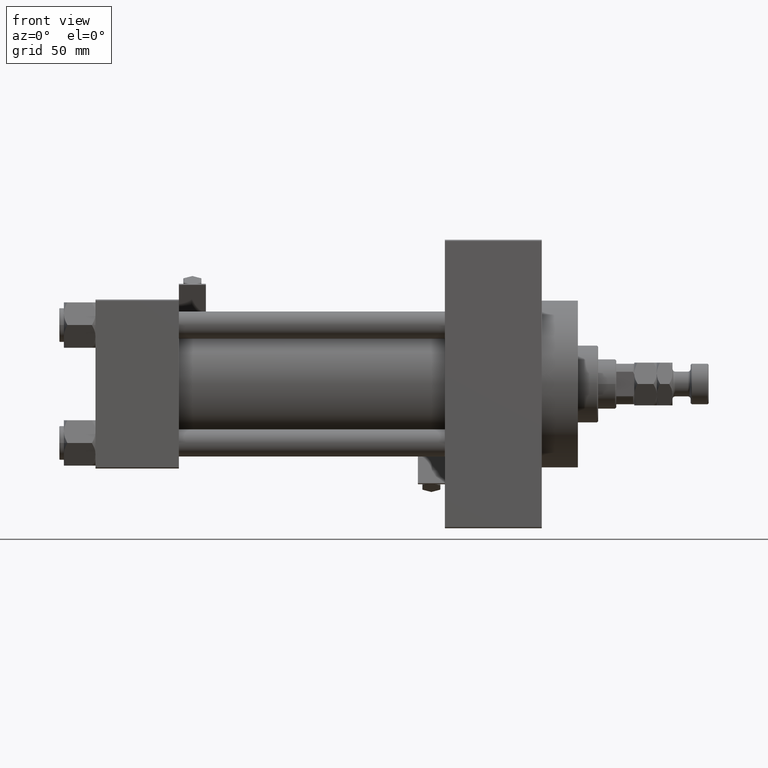
[diagram: clean part render]
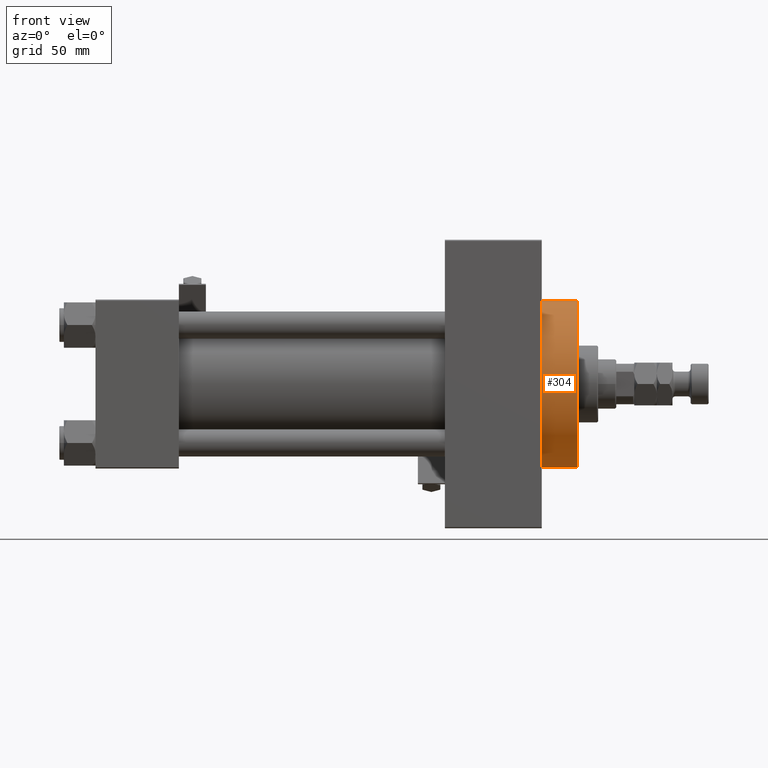
[diagram: same view with one face highlighted and labeled with its STEP entity id]
A machine part, front view. The second image highlights one B-rep face of the part: STEP entity #304.
In plain terms, the highlighted cylindrical surface (partial cylindrical patch) has radius 37 mm, axis along (-1, -0, -0).
Its self-contained STEP definition (entity closure, byte-faithful):
#304 = ADVANCED_FACE ( 'NONE', ( #27334 ), #12448, .T. ) ;
#1085 = CARTESIAN_POINT ( 'NONE',  ( 198.0000000000000000, 4.531193156845206793E-15, -37.00000000000000000 ) ) ;
#1636 = DIRECTION ( 'NONE',  ( -1.000000000000000000, -0.000000000000000000, -0.000000000000000000 ) ) ;
#4866 = CARTESIAN_POINT ( 'NONE',  ( 214.0000000000000284, 0.000000000000000000, 0.000000000000000000 ) ) ;
#5076 = CARTESIAN_POINT ( 'NONE',  ( 214.0000000000000284, 4.531193156845206793E-15, -37.00000000000000000 ) ) ;
#5727 = DIRECTION ( 'NONE',  ( -1.000000000000000000, -0.000000000000000000, -0.000000000000000000 ) ) ;
#9374 = EDGE_CURVE ( 'NONE', #30712, #24232, #27272, .T. ) ;
#11598 = ORIENTED_EDGE ( 'NONE', *, *, #40565, .F. ) ;
#12448 = CYLINDRICAL_SURFACE ( 'NONE', #15268, 37.00000000000000000 ) ;
#12777 = DIRECTION ( 'NONE',  ( 0.000000000000000000, 0.000000000000000000, -1.000000000000000000 ) ) ;
#12786 = CARTESIAN_POINT ( 'NONE',  ( 214.0000000000000284, 0.000000000000000000, 0.000000000000000000 ) ) ;
#14150 = EDGE_LOOP ( 'NONE', ( #32046, #11598, #26798, #32630 ) ) ;
#15268 = AXIS2_PLACEMENT_3D ( 'NONE', #4866, #16731, #39691 ) ;
#15707 = VERTEX_POINT ( 'NONE', #30224 ) ;
#15741 = EDGE_CURVE ( 'NONE', #23777, #24232, #41431, .T. ) ;
#16545 = LINE ( 'NONE', #35219, #27629 ) ;
#16731 = DIRECTION ( 'NONE',  ( -1.000000000000000000, -0.000000000000000000, -0.000000000000000000 ) ) ;
#18055 = AXIS2_PLACEMENT_3D ( 'NONE', #26437, #41839, #12777 ) ;
#19495 = VECTOR ( 'NONE', #5727, 1000.000000000000000 ) ;
#21945 = AXIS2_PLACEMENT_3D ( 'NONE', #12786, #24648, #31474 ) ;
#23777 = VERTEX_POINT ( 'NONE', #32967 ) ;
#24232 = VERTEX_POINT ( 'NONE', #1085 ) ;
#24648 = DIRECTION ( 'NONE',  ( 1.000000000000000000, 0.000000000000000000, 0.000000000000000000 ) ) ;
#26437 = CARTESIAN_POINT ( 'NONE',  ( 198.0000000000000000, 0.000000000000000000, 0.000000000000000000 ) ) ;
#26798 = ORIENTED_EDGE ( 'NONE', *, *, #41944, .T. ) ;
#27272 = LINE ( 'NONE', #31065, #19495 ) ;
#27334 = FACE_OUTER_BOUND ( 'NONE', #14150, .T. ) ;
#27629 = VECTOR ( 'NONE', #1636, 1000.000000000000000 ) ;
#30224 = CARTESIAN_POINT ( 'NONE',  ( 214.0000000000000284, 0.000000000000000000, 37.00000000000000000 ) ) ;
#30712 = VERTEX_POINT ( 'NONE', #5076 ) ;
#31065 = CARTESIAN_POINT ( 'NONE',  ( 214.0000000000000284, 4.531193156845206793E-15, -37.00000000000000000 ) ) ;
#31474 = DIRECTION ( 'NONE',  ( 0.000000000000000000, 0.000000000000000000, -1.000000000000000000 ) ) ;
#32046 = ORIENTED_EDGE ( 'NONE', *, *, #9374, .F. ) ;
#32630 = ORIENTED_EDGE ( 'NONE', *, *, #15741, .T. ) ;
#32967 = CARTESIAN_POINT ( 'NONE',  ( 198.0000000000000000, 0.000000000000000000, 37.00000000000000000 ) ) ;
#35219 = CARTESIAN_POINT ( 'NONE',  ( 214.0000000000000284, 0.000000000000000000, 37.00000000000000000 ) ) ;
#39691 = DIRECTION ( 'NONE',  ( 0.000000000000000000, 0.000000000000000000, 1.000000000000000000 ) ) ;
#40565 = EDGE_CURVE ( 'NONE', #15707, #30712, #42888, .T. ) ;
#41431 = CIRCLE ( 'NONE', #18055, 37.00000000000000000 ) ;
#41839 = DIRECTION ( 'NONE',  ( 1.000000000000000000, 0.000000000000000000, 0.000000000000000000 ) ) ;
#41944 = EDGE_CURVE ( 'NONE', #15707, #23777, #16545, .T. ) ;
#42888 = CIRCLE ( 'NONE', #21945, 37.00000000000000000 ) ;